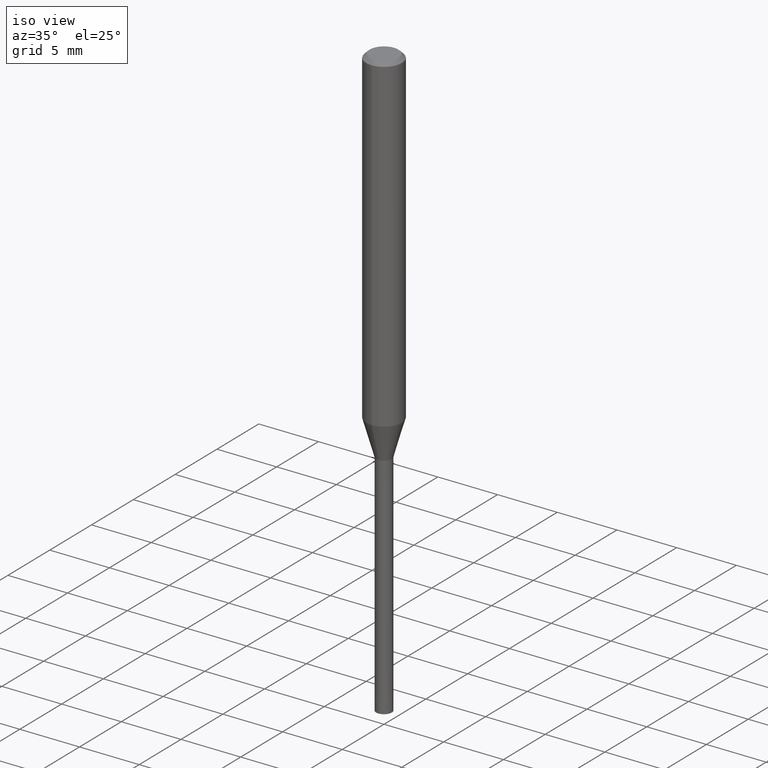
[diagram: clean part render]
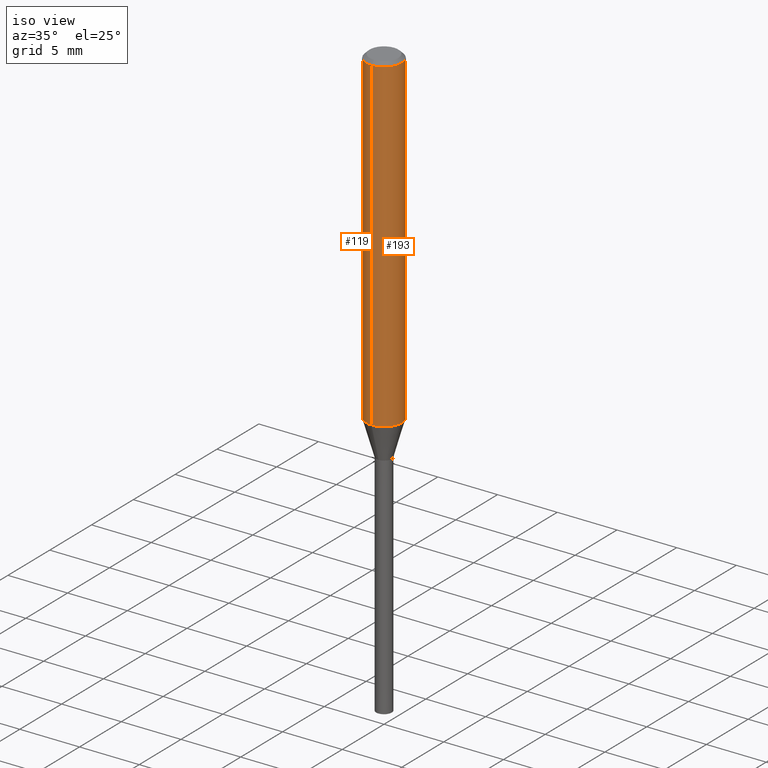
[diagram: same view with one multi-face feature highlighted, each face labeled with its STEP entity id]
A machine part, iso view. The highlighted faces form ONE feature: a constant-radius fillet chain: 2 tangent blend faces with common blend radius 1.5 mm. The faces share edges in the B-rep.
Their STEP definitions:
[1] entity #119 (Cylinder):
#101=VERTEX_POINT('',#238);
#103=VERTEX_POINT('',#240);
#107=EDGE_CURVE('',#173,#103,#245,.T.);
#119=ADVANCED_FACE('',(#258),#259,.T.);
#121=EDGE_CURVE('',#183,#101,#261,.T.);
#139=EDGE_CURVE('',#103,#101,#281,.T.);
#173=VERTEX_POINT('',#318);
#175=EDGE_CURVE('',#183,#173,#320,.T.);
#183=VERTEX_POINT('',#329);
#238=CARTESIAN_POINT('',(0.0,1.5,-27.536));
#240=CARTESIAN_POINT('',(0.0,1.5,-0.300000000000001));
#245=CIRCLE('',#388,1.5);
#258=FACE_OUTER_BOUND('',#403,.T.);
#259=CYLINDRICAL_SURFACE('',#404,1.5);
#261=CIRCLE('',#407,1.5);
#281=LINE('',#432,#433);
#318=CARTESIAN_POINT('',(1.83690953073357E-016,-1.5,-0.300000000000001));
#320=LINE('',#486,#487);
#329=CARTESIAN_POINT('',(1.83690953073357E-016,-1.5,-27.536));
#388=AXIS2_PLACEMENT_3D('',#561,#562,#563);
#403=EDGE_LOOP('',(#577,#578,#579,#580));
#404=AXIS2_PLACEMENT_3D('',#581,#582,#583);
#407=AXIS2_PLACEMENT_3D('',#584,#585,#586);
#432=CARTESIAN_POINT('',(-1.83690953073357E-016,1.5,-13.918));
#433=VECTOR('',#607,1.0);
#486=CARTESIAN_POINT('',(1.83690953073357E-016,-1.5,-13.918));
#487=VECTOR('',#651,1.0);
#561=CARTESIAN_POINT('',(0.0,0.0,-0.300000000000001));
#562=DIRECTION('',(0.0,0.0,-1.0));
#563=DIRECTION('',(0.0,1.0,0.0));
#577=ORIENTED_EDGE('',*,*,#139,.T.);
#578=ORIENTED_EDGE('',*,*,#121,.F.);
#579=ORIENTED_EDGE('',*,*,#175,.T.);
#580=ORIENTED_EDGE('',*,*,#107,.T.);
#581=CARTESIAN_POINT('',(0.0,0.0,-13.918));
#582=DIRECTION('',(-0.0,-0.0,1.0));
#583=DIRECTION('',(0.0,1.0,0.0));
#584=CARTESIAN_POINT('',(0.0,0.0,-27.536));
#585=DIRECTION('',(0.0,0.0,-1.0));
#586=DIRECTION('',(0.0,1.0,0.0));
#607=DIRECTION('',(0.0,0.0,-1.0));
#651=DIRECTION('',(-0.0,-0.0,1.0));
[2] entity #193 (Cylinder):
#101=VERTEX_POINT('',#238);
#103=VERTEX_POINT('',#240);
#139=EDGE_CURVE('',#103,#101,#281,.T.);
#163=EDGE_CURVE('',#103,#173,#306,.T.);
#173=VERTEX_POINT('',#318);
#175=EDGE_CURVE('',#183,#173,#320,.T.);
#183=VERTEX_POINT('',#329);
#193=ADVANCED_FACE('',(#341),#342,.T.);
#197=EDGE_CURVE('',#101,#183,#346,.T.);
#238=CARTESIAN_POINT('',(0.0,1.5,-27.536));
#240=CARTESIAN_POINT('',(0.0,1.5,-0.300000000000001));
#281=LINE('',#432,#433);
#306=CIRCLE('',#469,1.5);
#318=CARTESIAN_POINT('',(1.83690953073357E-016,-1.5,-0.300000000000001));
#320=LINE('',#486,#487);
#329=CARTESIAN_POINT('',(1.83690953073357E-016,-1.5,-27.536));
#341=FACE_OUTER_BOUND('',#513,.T.);
#342=CYLINDRICAL_SURFACE('',#514,1.5);
#346=CIRCLE('',#519,1.5);
#432=CARTESIAN_POINT('',(-1.83690953073357E-016,1.5,-13.918));
#433=VECTOR('',#607,1.0);
#469=AXIS2_PLACEMENT_3D('',#626,#627,#628);
#486=CARTESIAN_POINT('',(1.83690953073357E-016,-1.5,-13.918));
#487=VECTOR('',#651,1.0);
#513=EDGE_LOOP('',(#680,#681,#682,#683));
#514=AXIS2_PLACEMENT_3D('',#684,#685,#686);
#519=AXIS2_PLACEMENT_3D('',#687,#688,#689);
#607=DIRECTION('',(0.0,0.0,-1.0));
#626=CARTESIAN_POINT('',(0.0,0.0,-0.300000000000001));
#627=DIRECTION('',(0.0,0.0,-1.0));
#628=DIRECTION('',(0.0,1.0,0.0));
#651=DIRECTION('',(-0.0,-0.0,1.0));
#680=ORIENTED_EDGE('',*,*,#139,.F.);
#681=ORIENTED_EDGE('',*,*,#163,.T.);
#682=ORIENTED_EDGE('',*,*,#175,.F.);
#683=ORIENTED_EDGE('',*,*,#197,.F.);
#684=CARTESIAN_POINT('',(0.0,0.0,-13.918));
#685=DIRECTION('',(-0.0,-0.0,1.0));
#686=DIRECTION('',(0.0,1.0,0.0));
#687=CARTESIAN_POINT('',(0.0,0.0,-27.536));
#688=DIRECTION('',(0.0,0.0,-1.0));
#689=DIRECTION('',(0.0,1.0,0.0));